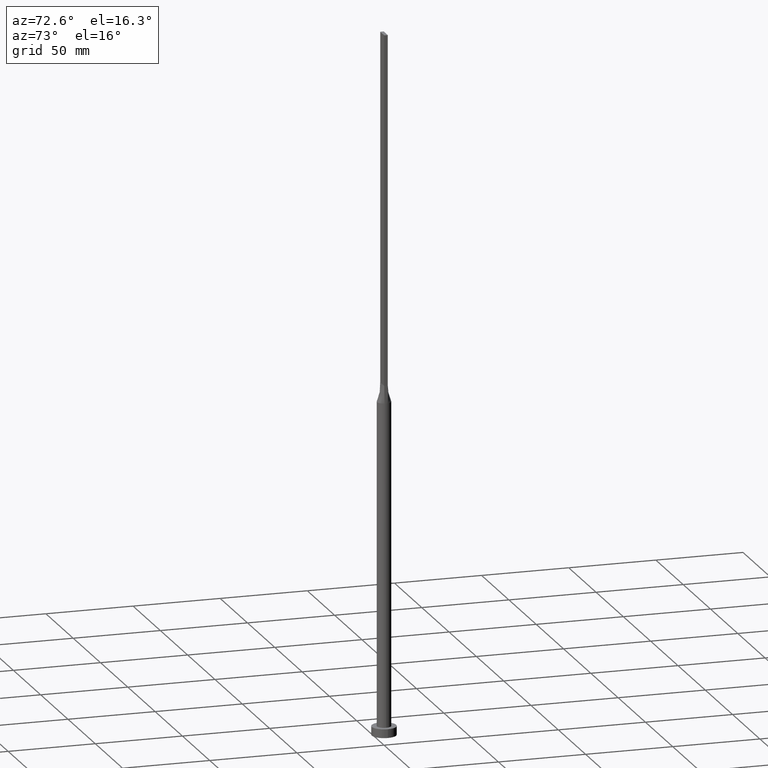
[diagram: clean part render]
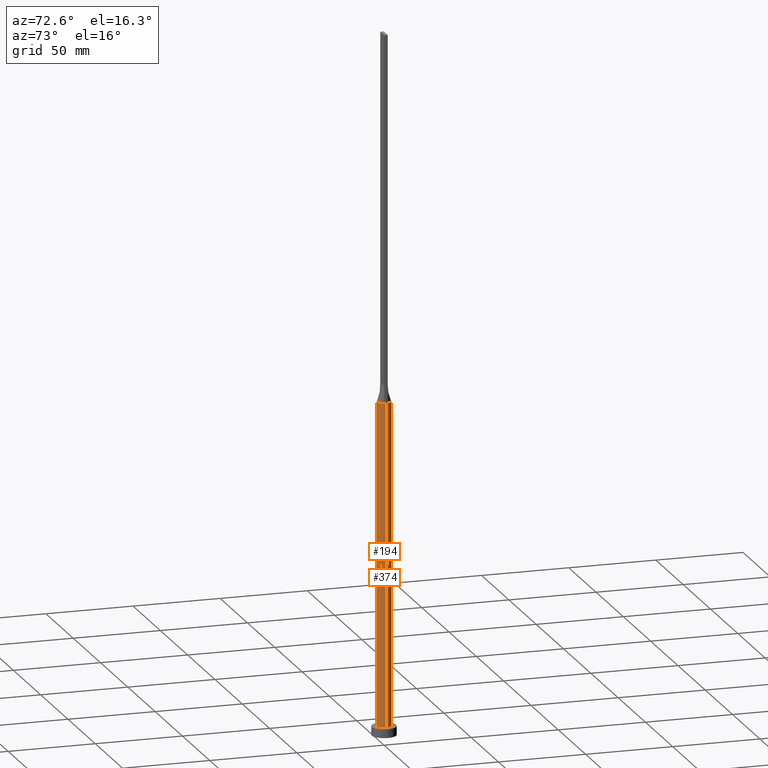
[diagram: same view with one multi-face feature highlighted, each face labeled with its STEP entity id]
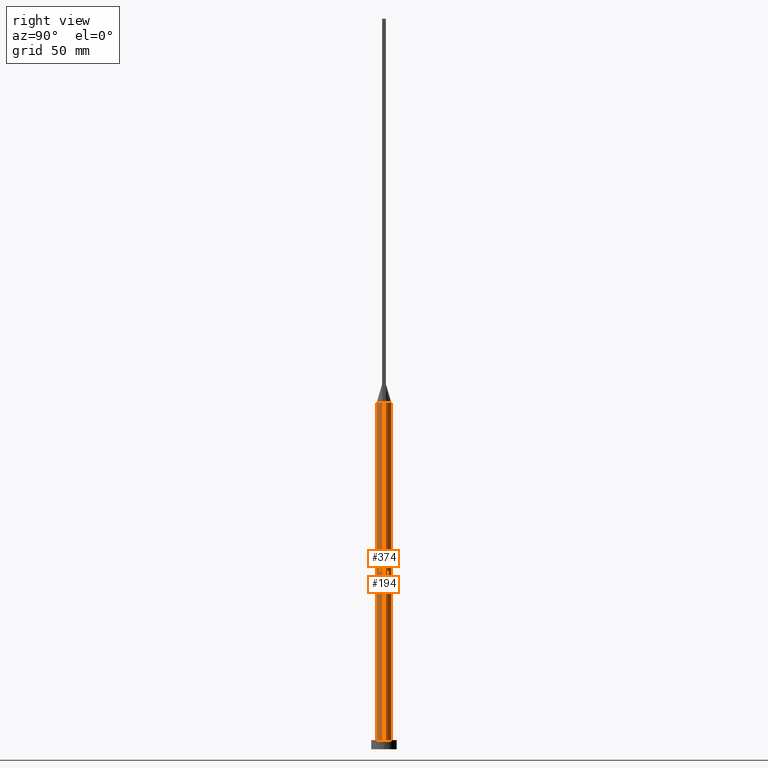
[diagram: same view with one multi-face feature highlighted, each face labeled with its STEP entity id]
A machine part, auxiliary view. The highlighted faces form ONE feature: a constant-radius fillet chain: 2 tangent blend faces with common blend radius 4 mm. The faces share edges in the B-rep.
A second angle (right view) of the same feature is appended — it is thin or edge-on in the first view.
Their STEP definitions:
[1] entity #194 (Cylinder):
#3 = FACE_OUTER_BOUND ( 'NONE', #485, .T. ) ;
#10 = DIRECTION ( 'NONE',  ( 0.000000000000000000, 0.000000000000000000, 1.000000000000000000 ) ) ;
#19 = VERTEX_POINT ( 'NONE', #92 ) ;
#25 = VERTEX_POINT ( 'NONE', #497 ) ;
#47 = EDGE_CURVE ( 'NONE', #93, #493, #83, .T. ) ;
#48 = DIRECTION ( 'NONE',  ( -1.000000000000000000, 0.000000000000000000, 0.000000000000000000 ) ) ;
#50 = ORIENTED_EDGE ( 'NONE', *, *, #529, .T. ) ;
#60 = DIRECTION ( 'NONE',  ( 1.000000000000000000, 0.000000000000000000, 0.000000000000000000 ) ) ;
#66 = CARTESIAN_POINT ( 'NONE',  ( -3.781952206537765537, 1.341853921743403788, 190.0000000000000568 ) ) ;
#68 = DIRECTION ( 'NONE',  ( -0.000000000000000000, -0.000000000000000000, -1.000000000000000000 ) ) ;
#73 = LINE ( 'NONE', #198, #127 ) ;
#78 = CIRCLE ( 'NONE', #280, 4.000000000000000000 ) ;
#83 = CIRCLE ( 'NONE', #87, 4.000000000000000000 ) ;
#87 = AXIS2_PLACEMENT_3D ( 'NONE', #450, #542, #281 ) ;
#92 = CARTESIAN_POINT ( 'NONE',  ( -3.865236553917747120, 1.030730781768519622, 190.0000000000000000 ) ) ;
#93 = VERTEX_POINT ( 'NONE', #296 ) ;
#95 = ORIENTED_EDGE ( 'NONE', *, *, #339, .F. ) ;
#96 = CARTESIAN_POINT ( 'NONE',  ( -1.023074425454088221, 3.898373771260455811, 190.0000000000000000 ) ) ;
#101 = CARTESIAN_POINT ( 'NONE',  ( 1.023074425454087999, 3.898373771260456255, 190.0000000000000284 ) ) ;
#103 = CARTESIAN_POINT ( 'NONE',  ( 0.000000000000000000, 0.000000000000000000, 190.0000000000000000 ) ) ;
#108 = CARTESIAN_POINT ( 'NONE',  ( -3.009488128496037529, 2.672487015486668671, 189.9999999999999716 ) ) ;
#127 = VECTOR ( 'NONE', #68, 1000.000000000000000 ) ;
#128 = VECTOR ( 'NONE', #256, 1000.000000000000000 ) ;
#138 = DIRECTION ( 'NONE',  ( 0.000000000000000000, 0.000000000000000000, 1.000000000000000000 ) ) ;
#149 = CARTESIAN_POINT ( 'NONE',  ( 2.346407003458400808, 3.270103945996944983, 190.0000000000000284 ) ) ;
#178 = ORIENTED_EDGE ( 'NONE', *, *, #495, .F. ) ;
#187 = CARTESIAN_POINT ( 'NONE',  ( 3.009488128496037085, 2.672487015486669115, 190.0000000000000284 ) ) ;
#194 = ADVANCED_FACE ( 'NONE', ( #3 ), #316, .T. ) ;
#196 = CARTESIAN_POINT ( 'NONE',  ( 3.267840578657193795, 2.338604872288698289, 190.0000000000000568 ) ) ;
#198 = CARTESIAN_POINT ( 'NONE',  ( -4.000000000000000000, 0.000000000000000000, 190.0000000000000000 ) ) ;
#203 = LINE ( 'NONE', #471, #128 ) ;
#219 = VERTEX_POINT ( 'NONE', #545 ) ;
#226 = ORIENTED_EDGE ( 'NONE', *, *, #47, .T. ) ;
#235 = ORIENTED_EDGE ( 'NONE', *, *, #508, .F. ) ;
#256 = DIRECTION ( 'NONE',  ( -0.000000000000000000, -0.000000000000000000, -1.000000000000000000 ) ) ;
#275 = CARTESIAN_POINT ( 'NONE',  ( -3.653499896451231521, 1.673258289339058180, 190.0000000000000284 ) ) ;
#280 = AXIS2_PLACEMENT_3D ( 'NONE', #411, #10, #60 ) ;
#281 = DIRECTION ( 'NONE',  ( 1.000000000000000000, 0.000000000000000000, 0.000000000000000000 ) ) ;
#282 = CARTESIAN_POINT ( 'NONE',  ( -3.865236553917747120, 1.030730781768519622, 190.0000000000000000 ) ) ;
#286 = CARTESIAN_POINT ( 'NONE',  ( -1.940702937457743138, 3.532374760555930582, 190.0000000000000284 ) ) ;
#288 = CARTESIAN_POINT ( 'NONE',  ( -3.267840578657194239, 2.338604872288698289, 190.0000000000000284 ) ) ;
#296 = CARTESIAN_POINT ( 'NONE',  ( 4.000000000000000000, 4.898587196589412829E-16, 5.000000000000000000 ) ) ;
#316 = CYLINDRICAL_SURFACE ( 'NONE', #407, 4.000000000000000000 ) ;
#317 = CARTESIAN_POINT ( 'NONE',  ( 3.781952206537764205, 1.341853921743403788, 190.0000000000000000 ) ) ;
#320 = CARTESIAN_POINT ( 'NONE',  ( 0.000000000000000000, 0.000000000000000000, 190.0000000000000000 ) ) ;
#322 = CIRCLE ( 'NONE', #325, 4.000000000000000000 ) ;
#325 = AXIS2_PLACEMENT_3D ( 'NONE', #320, #138, #464 ) ;
#328 = ORIENTED_EDGE ( 'NONE', *, *, #560, .F. ) ;
#330 = CARTESIAN_POINT ( 'NONE',  ( -2.346407003458401253, 3.270103945996944095, 190.0000000000000000 ) ) ;
#339 = EDGE_CURVE ( 'NONE', #219, #493, #73, .T. ) ;
#364 = VERTEX_POINT ( 'NONE', #433 ) ;
#395 = B_SPLINE_CURVE_WITH_KNOTS ( 'NONE', 3,
 ( #553, #317, #514, #196, #187, #149, #498, #101, #562, #557, #96, #286, #330, #108, #288, #275, #66, #282 ),
 .UNSPECIFIED., .F., .F.,
 ( 4, 2, 2, 2, 2, 2, 2, 2, 4 ),
 ( 0.000000000000000000, 0.1250000000000000000, 0.2500000000000000000, 0.3750000000000000000, 0.5000000000000000000, 0.6250000000000000000, 0.7500000000000000000, 0.8750000000000000000, 1.000000000000000000 ),
 .UNSPECIFIED. ) ;
#407 = AXIS2_PLACEMENT_3D ( 'NONE', #103, #500, #48 ) ;
#411 = CARTESIAN_POINT ( 'NONE',  ( 0.000000000000000000, 0.000000000000000000, 190.0000000000000000 ) ) ;
#433 = CARTESIAN_POINT ( 'NONE',  ( 3.865212754195084699, 1.030724393897464841, 190.0000000000000000 ) ) ;
#450 = CARTESIAN_POINT ( 'NONE',  ( 0.000000000000000000, 0.000000000000000000, 5.000000000000000000 ) ) ;
#464 = DIRECTION ( 'NONE',  ( 1.000000000000000000, 0.000000000000000000, 0.000000000000000000 ) ) ;
#471 = CARTESIAN_POINT ( 'NONE',  ( 4.000000000000000000, 4.898587196589412829E-16, 190.0000000000000000 ) ) ;
#485 = EDGE_LOOP ( 'NONE', ( #178, #50, #226, #95, #328, #235 ) ) ;
#493 = VERTEX_POINT ( 'NONE', #547 ) ;
#495 = EDGE_CURVE ( 'NONE', #25, #364, #322, .T. ) ;
#497 = CARTESIAN_POINT ( 'NONE',  ( 4.000000000000000000, -1.256865613583667397E-17, 190.0000000000000000 ) ) ;
#498 = CARTESIAN_POINT ( 'NONE',  ( 1.940702937457743582, 3.532374760555930582, 190.0000000000000000 ) ) ;
#500 = DIRECTION ( 'NONE',  ( -0.000000000000000000, -0.000000000000000000, -1.000000000000000000 ) ) ;
#508 = EDGE_CURVE ( 'NONE', #364, #19, #395, .T. ) ;
#514 = CARTESIAN_POINT ( 'NONE',  ( 3.653499896451231521, 1.673258289339057958, 189.9999999999999716 ) ) ;
#529 = EDGE_CURVE ( 'NONE', #25, #93, #203, .T. ) ;
#542 = DIRECTION ( 'NONE',  ( 0.000000000000000000, 0.000000000000000000, 1.000000000000000000 ) ) ;
#545 = CARTESIAN_POINT ( 'NONE',  ( -4.000000000000000000, -2.459132308497027359E-16, 190.0000000000000000 ) ) ;
#547 = CARTESIAN_POINT ( 'NONE',  ( -4.000000000000000000, 0.000000000000000000, 5.000000000000000000 ) ) ;
#553 = CARTESIAN_POINT ( 'NONE',  ( 3.865212754195084699, 1.030724393897464841, 190.0000000000000000 ) ) ;
#557 = CARTESIAN_POINT ( 'NONE',  ( -0.5121855420560009753, 4.000000000000000888, 190.0000000000000284 ) ) ;
#560 = EDGE_CURVE ( 'NONE', #19, #219, #78, .T. ) ;
#562 = CARTESIAN_POINT ( 'NONE',  ( 0.5121855420560009753, 4.000000000000000888, 190.0000000000000000 ) ) ;
[2] entity #374 (Cylinder):
#25 = VERTEX_POINT ( 'NONE', #497 ) ;
#45 = ORIENTED_EDGE ( 'NONE', *, *, #529, .F. ) ;
#55 = CIRCLE ( 'NONE', #209, 4.000000000000000000 ) ;
#65 = ORIENTED_EDGE ( 'NONE', *, *, #295, .T. ) ;
#68 = DIRECTION ( 'NONE',  ( -0.000000000000000000, -0.000000000000000000, -1.000000000000000000 ) ) ;
#73 = LINE ( 'NONE', #198, #127 ) ;
#81 = EDGE_CURVE ( 'NONE', #219, #538, #297, .T. ) ;
#93 = VERTEX_POINT ( 'NONE', #296 ) ;
#105 = CARTESIAN_POINT ( 'NONE',  ( 0.000000000000000000, 0.000000000000000000, 190.0000000000000000 ) ) ;
#110 = CARTESIAN_POINT ( 'NONE',  ( 0.000000000000000000, 0.000000000000000000, 190.0000000000000000 ) ) ;
#127 = VECTOR ( 'NONE', #68, 1000.000000000000000 ) ;
#128 = VECTOR ( 'NONE', #256, 1000.000000000000000 ) ;
#133 = ORIENTED_EDGE ( 'NONE', *, *, #81, .F. ) ;
#141 = VERTEX_POINT ( 'NONE', #430 ) ;
#152 = DIRECTION ( 'NONE',  ( 1.000000000000000000, -6.217248937900876626E-15, 0.000000000000000000 ) ) ;
#162 = DIRECTION ( 'NONE',  ( -0.000000000000000000, -0.000000000000000000, -1.000000000000000000 ) ) ;
#185 = DIRECTION ( 'NONE',  ( 1.000000000000000000, 0.000000000000000000, 0.000000000000000000 ) ) ;
#198 = CARTESIAN_POINT ( 'NONE',  ( -4.000000000000000000, 0.000000000000000000, 190.0000000000000000 ) ) ;
#203 = LINE ( 'NONE', #471, #128 ) ;
#209 = AXIS2_PLACEMENT_3D ( 'NONE', #448, #284, #408 ) ;
#214 = AXIS2_PLACEMENT_3D ( 'NONE', #110, #463, #299 ) ;
#216 = AXIS2_PLACEMENT_3D ( 'NONE', #105, #376, #152 ) ;
#219 = VERTEX_POINT ( 'NONE', #545 ) ;
#236 = CARTESIAN_POINT ( 'NONE',  ( 0.000000000000000000, 0.000000000000000000, 190.0000000000000000 ) ) ;
#243 = ORIENTED_EDGE ( 'NONE', *, *, #580, .F. ) ;
#256 = DIRECTION ( 'NONE',  ( -0.000000000000000000, -0.000000000000000000, -1.000000000000000000 ) ) ;
#262 = DIRECTION ( 'NONE',  ( -1.000000000000000000, 0.000000000000000000, 0.000000000000000000 ) ) ;
#284 = DIRECTION ( 'NONE',  ( 0.000000000000000000, 0.000000000000000000, 1.000000000000000000 ) ) ;
#295 = EDGE_CURVE ( 'NONE', #493, #93, #55, .T. ) ;
#296 = CARTESIAN_POINT ( 'NONE',  ( 4.000000000000000000, 4.898587196589412829E-16, 5.000000000000000000 ) ) ;
#297 = CIRCLE ( 'NONE', #214, 4.000000000000000000 ) ;
#298 = AXIS2_PLACEMENT_3D ( 'NONE', #236, #415, #185 ) ;
#299 = DIRECTION ( 'NONE',  ( 1.000000000000000000, 0.000000000000000000, 0.000000000000000000 ) ) ;
#305 = CARTESIAN_POINT ( 'NONE',  ( 0.000000000000000000, 0.000000000000000000, 190.0000000000000000 ) ) ;
#339 = EDGE_CURVE ( 'NONE', #219, #493, #73, .T. ) ;
#346 = AXIS2_PLACEMENT_3D ( 'NONE', #305, #162, #262 ) ;
#374 = ADVANCED_FACE ( 'NONE', ( #532 ), #571, .T. ) ;
#376 = DIRECTION ( 'NONE',  ( 0.000000000000000000, 0.000000000000000000, 1.000000000000000000 ) ) ;
#394 = CIRCLE ( 'NONE', #216, 4.000000000000000000 ) ;
#408 = DIRECTION ( 'NONE',  ( 1.000000000000000000, 0.000000000000000000, 0.000000000000000000 ) ) ;
#415 = DIRECTION ( 'NONE',  ( 0.000000000000000000, 0.000000000000000000, 1.000000000000000000 ) ) ;
#421 = EDGE_LOOP ( 'NONE', ( #45, #243, #558, #133, #427, #65 ) ) ;
#427 = ORIENTED_EDGE ( 'NONE', *, *, #339, .T. ) ;
#430 = CARTESIAN_POINT ( 'NONE',  ( 3.865244591400370577, -1.030732999276501527, 190.0000000000000000 ) ) ;
#432 = CARTESIAN_POINT ( 'NONE',  ( -3.865220763612065902, -1.030726602927787949, 190.0000000000000000 ) ) ;
#448 = CARTESIAN_POINT ( 'NONE',  ( 0.000000000000000000, 0.000000000000000000, 5.000000000000000000 ) ) ;
#463 = DIRECTION ( 'NONE',  ( 0.000000000000000000, 0.000000000000000000, 1.000000000000000000 ) ) ;
#471 = CARTESIAN_POINT ( 'NONE',  ( 4.000000000000000000, 4.898587196589412829E-16, 190.0000000000000000 ) ) ;
#477 = CIRCLE ( 'NONE', #298, 4.000000000000000000 ) ;
#493 = VERTEX_POINT ( 'NONE', #547 ) ;
#497 = CARTESIAN_POINT ( 'NONE',  ( 4.000000000000000000, -1.256865613583667397E-17, 190.0000000000000000 ) ) ;
#529 = EDGE_CURVE ( 'NONE', #25, #93, #203, .T. ) ;
#532 = FACE_OUTER_BOUND ( 'NONE', #421, .T. ) ;
#538 = VERTEX_POINT ( 'NONE', #432 ) ;
#545 = CARTESIAN_POINT ( 'NONE',  ( -4.000000000000000000, -2.459132308497027359E-16, 190.0000000000000000 ) ) ;
#547 = CARTESIAN_POINT ( 'NONE',  ( -4.000000000000000000, 0.000000000000000000, 5.000000000000000000 ) ) ;
#558 = ORIENTED_EDGE ( 'NONE', *, *, #573, .F. ) ;
#571 = CYLINDRICAL_SURFACE ( 'NONE', #346, 4.000000000000000000 ) ;
#573 = EDGE_CURVE ( 'NONE', #538, #141, #477, .T. ) ;
#580 = EDGE_CURVE ( 'NONE', #141, #25, #394, .T. ) ;